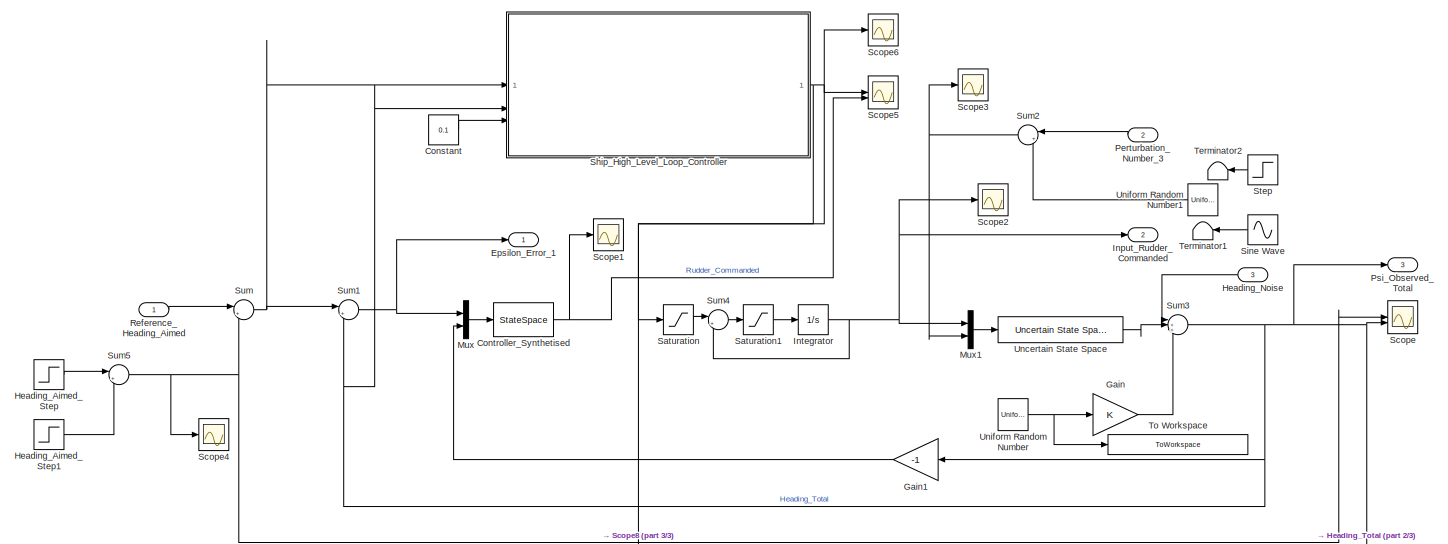
[diagram: root canvas - part 1/3, full width, top band]
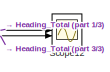
[diagram: root canvas - part 2/3, middle right region]
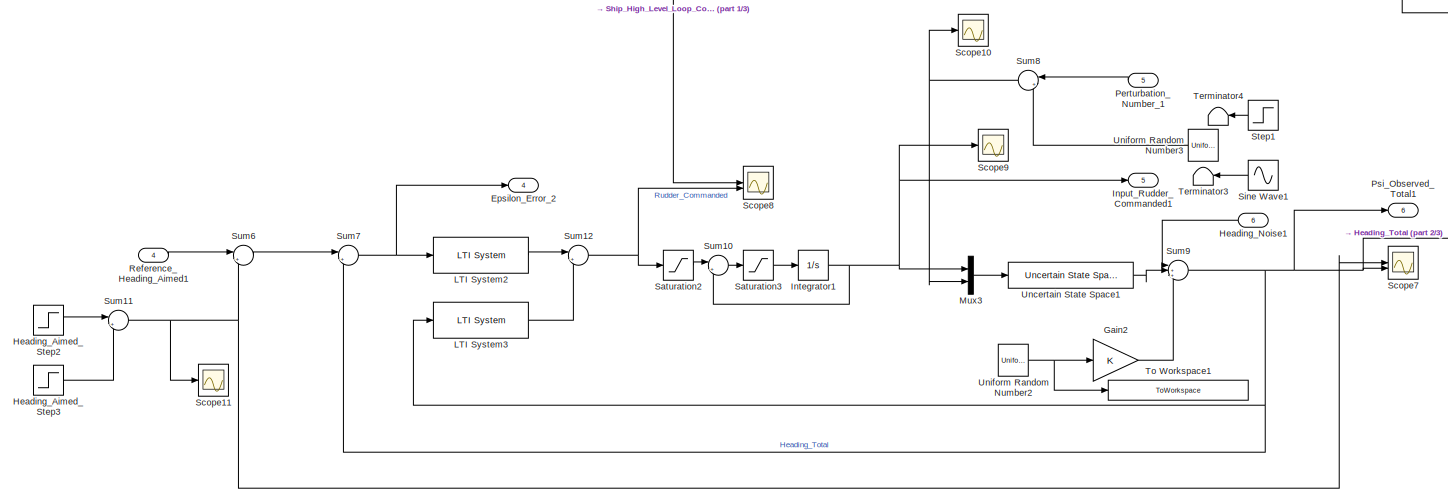
[diagram: root canvas - part 3/3, full width, bottom band]
MODEL slx_6f671dde7a6b
KIND model
CONFIG AbsTol = auto
CONFIG EnableMultiTasking = off
CONFIG FixedStep = auto
CONFIG MaxStep = auto
CONFIG MinStep = auto
CONFIG RelTol = 1e-3
CONFIG SampleTimeConstraint = Unconstrained
CONFIG SolverName = VariableStepAuto
CONFIG StartTime = 0.0
CONFIG StopTime = 150
BLOCK [Constant] Constant
  Value = 0.1
BLOCK [StateSpace] Controller_Synthetised
  A = State_Matrix_Controller_Nominal
  B = Input_Matrix_Controller_Nominal
  C = Measurement_Matrix_Controller_Nominal
  D = Input_Measurement_Matrix_Controller_Nominal
  InitialCondition = 0
BLOCK [Outport] Epsilon_Error_1
BLOCK [Outport] Epsilon_Error_2
  Port = 4
BLOCK [Gain] Gain
  OutDataTypeStr = Inherit: Same as input
  ParamDataTypeStr = Inherit: Same as input
  SaturateOnIntegerOverflow = on
BLOCK [Gain] Gain1
  Gain = -1
  OutDataTypeStr = Inherit: Same as input
  ParamDataTypeStr = Inherit: Same as input
  SaturateOnIntegerOverflow = on
BLOCK [Gain] Gain2
  OutDataTypeStr = Inherit: Same as input
  ParamDataTypeStr = Inherit: Same as input
  SaturateOnIntegerOverflow = on
BLOCK [Step] Heading_Aimed_Step
  After = Step_Heading_Aimed
  SampleTime = 0
  Time = 0
BLOCK [Step] Heading_Aimed_Step1
  After = 50*(pi/180)
  SampleTime = 0
  Time = 20
BLOCK [Step] Heading_Aimed_Step2
  After = Step_Heading_Aimed
  SampleTime = 0
  Time = 0
BLOCK [Step] Heading_Aimed_Step3
  After = 50*(pi/180)
  SampleTime = 0
  Time = 20
BLOCK [Inport] Heading_Noise
  Port = 3
BLOCK [Inport] Heading_Noise1
  Port = 6
BLOCK [Outport] Input_Rudder_Commanded
  Port = 2
BLOCK [Outport] Input_Rudder_Commanded1
  Port = 5
BLOCK [Integrator] Integrator
BLOCK [Integrator] Integrator1
BLOCK [Reference] LTI System2  REF=cstblocks/LTI System
  SourceBlock = cstblocks/LTI System
  SourceType = LTI Block
BLOCK [Reference] LTI System3  REF=cstblocks/LTI System
  SourceBlock = cstblocks/LTI System
  SourceType = LTI Block
BLOCK [Mux] Mux
  DisplayOption = bar
  Inputs = 2
BLOCK [Mux] Mux1
  DisplayOption = bar
  Inputs = 2
BLOCK [Mux] Mux3
  DisplayOption = bar
  Inputs = 2
BLOCK [Inport] Perturbation_Number_1
  Port = 5
BLOCK [Inport] Perturbation_Number_3
  Port = 2
BLOCK [Outport] Psi_Observed_Total
  Port = 3
BLOCK [Outport] Psi_Observed_Total1
  Port = 6
BLOCK [Inport] Reference_Heading_Aimed
BLOCK [Inport] Reference_Heading_Aimed1
  Port = 4
BLOCK [Saturate] Saturation
  LowerLimit = -35*(pi/180)
  UpperLimit = 35*(pi/180)
BLOCK [Saturate] Saturation1
  LowerLimit = -8*(pi/180)
  UpperLimit = 8*(pi/180)
BLOCK [Saturate] Saturation2
  LowerLimit = -35*(pi/180)
  UpperLimit = 35*(pi/180)
BLOCK [Saturate] Saturation3
  LowerLimit = -8*(pi/180)
  UpperLimit = 8*(pi/180)
BLOCK [Scope] Scope
  Floating = off
  NumInputPorts = 2
  ScopeSpecificationString = Simulink.scopes.TimeScopeBlockCfg('CurrentConfiguration', extmgr.ConfigurationSet(extmgr.Configuration('Core','General UI',true),extmgr.Configuration('Core','Source UI',true),extmgr.Configuration('Sources','WiredSimulink',true),extmgr.Configuration('Visuals','Time Domain',true,'SerializedDisplays',{struct('MinYLimReal','-0.20195','MaxYLimReal','1.72277','YLabelReal','','MinYLimMag','0.00000','MaxY...<+1473ch>
BLOCK [Scope] Scope1
  Floating = off
  NumInputPorts = 1
  ScopeSpecificationString = Simulink.scopes.TimeScopeBlockCfg('CurrentConfiguration', extmgr.ConfigurationSet(extmgr.Configuration('Core','General UI',true),extmgr.Configuration('Core','Source UI',true),extmgr.Configuration('Sources','WiredSimulink',true,'DataLoggingVariableName','ScopeData1'),extmgr.Configuration('Visuals','Time Domain',true,'SerializedDisplays',{struct('MinYLimReal','-0.4168','MaxYLimReal','0.47214','YLabe...<+1518ch>
BLOCK [Scope] Scope10
  Floating = off
  NumInputPorts = 1
  ScopeSpecificationString = Simulink.scopes.TimeScopeBlockCfg('CurrentConfiguration', extmgr.ConfigurationSet(extmgr.Configuration('Core','General UI',true),extmgr.Configuration('Core','Source UI',true),extmgr.Configuration('Sources','WiredSimulink',true,'DataLoggingVariableName','ScopeData1'),extmgr.Configuration('Visuals','Time Domain',true,'SerializedDisplays',{struct('MinYLimReal','-0.21816','MaxYLimReal','0.21817','YLab...<+1452ch>
BLOCK [Scope] Scope11
  Floating = off
  NumInputPorts = 1
  ScopeSpecificationString = Simulink.scopes.TimeScopeBlockCfg('CurrentConfiguration', extmgr.ConfigurationSet(extmgr.Configuration('Core','General UI',true),extmgr.Configuration('Core','Source UI',true),extmgr.Configuration('Sources','WiredSimulink',true,'DataLoggingVariableName','ScopeData2'),extmgr.Configuration('Visuals','Time Domain',true,'SerializedDisplays',{struct('MinYLimReal','-0.21817','MaxYLimReal','1.9635','YLabe...<+1487ch>
BLOCK [Scope] Scope12
  Floating = off
  NumInputPorts = 2
  ScopeSpecificationString = Simulink.scopes.TimeScopeBlockCfg('CurrentConfiguration', extmgr.ConfigurationSet(extmgr.Configuration('Core','General UI',true),extmgr.Configuration('Core','Source UI',true),extmgr.Configuration('Sources','WiredSimulink',true,'DataLoggingVariableName','ScopeData1'),extmgr.Configuration('Visuals','Time Domain',true,'SerializedDisplays',{struct('MinYLimReal','-0.20196','MaxYLimReal','1.72277','YLab...<+1477ch>
BLOCK [Scope] Scope2
  Floating = off
  NumInputPorts = 1
  ScopeSpecificationString = Simulink.scopes.TimeScopeBlockCfg('CurrentConfiguration', extmgr.ConfigurationSet(extmgr.Configuration('Core','General UI',true),extmgr.Configuration('Core','Source UI',true),extmgr.Configuration('Sources','WiredSimulink',true,'DataLoggingVariableName','ScopeData1'),extmgr.Configuration('Visuals','Time Domain',true,'SerializedDisplays',{struct('MinYLimReal','-0.19774','MaxYLimReal','0.26481','YLab...<+1535ch>
BLOCK [Scope] Scope3
  Floating = off
  NumInputPorts = 1
  ScopeSpecificationString = Simulink.scopes.TimeScopeBlockCfg('CurrentConfiguration', extmgr.ConfigurationSet(extmgr.Configuration('Core','General UI',true),extmgr.Configuration('Core','Source UI',true),extmgr.Configuration('Sources','WiredSimulink',true,'DataLoggingVariableName','ScopeData1'),extmgr.Configuration('Visuals','Time Domain',true,'SerializedDisplays',{struct('MinYLimReal','-0.21816','MaxYLimReal','0.21817','YLab...<+1452ch>
BLOCK [Scope] Scope4
  Floating = off
  NumInputPorts = 1
  ScopeSpecificationString = Simulink.scopes.TimeScopeBlockCfg('CurrentConfiguration', extmgr.ConfigurationSet(extmgr.Configuration('Core','General UI',true),extmgr.Configuration('Core','Source UI',true),extmgr.Configuration('Sources','WiredSimulink',true,'DataLoggingVariableName','ScopeData1'),extmgr.Configuration('Visuals','Time Domain',true,'SerializedDisplays',{struct('MinYLimReal','-0.21817','MaxYLimReal','1.9635','YLabe...<+1487ch>
BLOCK [Scope] Scope5
  Floating = off
  NumInputPorts = 2
  ScopeSpecificationString = Simulink.scopes.TimeScopeBlockCfg('CurrentConfiguration', extmgr.ConfigurationSet(extmgr.Configuration('Core','General UI',true),extmgr.Configuration('Core','Source UI',true),extmgr.Configuration('Sources','WiredSimulink',true,'DataLoggingVariableName','ScopeData1'),extmgr.Configuration('Visuals','Time Domain',true,'SerializedDisplays',{struct('MinYLimReal','-0.37696','MaxYLimReal','0.38615','YLab...<+1498ch>
BLOCK [Scope] Scope6
  Floating = off
  NumInputPorts = 1
  ScopeSpecificationString = Simulink.scopes.TimeScopeBlockCfg('CurrentConfiguration', extmgr.ConfigurationSet(extmgr.Configuration('Core','General UI',true),extmgr.Configuration('Core','Source UI',true),extmgr.Configuration('Sources','WiredSimulink',true,'DataLoggingVariableName','ScopeData2'),extmgr.Configuration('Visuals','Time Domain',true,'SerializedDisplays',{struct('MinYLimReal','-0.41518','MaxYLimReal','0.47042','YLab...<+1512ch>
BLOCK [Scope] Scope7
  Floating = off
  NumInputPorts = 2
  ScopeSpecificationString = Simulink.scopes.TimeScopeBlockCfg('CurrentConfiguration', extmgr.ConfigurationSet(extmgr.Configuration('Core','General UI',true),extmgr.Configuration('Core','Source UI',true),extmgr.Configuration('Sources','WiredSimulink',true,'DataLoggingVariableName','ScopeData5'),extmgr.Configuration('Visuals','Time Domain',true,'SerializedDisplays',{struct('MinYLimReal','-0.19844','MaxYLimReal','1.68943','YLab...<+1513ch>
BLOCK [Scope] Scope8
  Floating = off
  NumInputPorts = 2
  ScopeSpecificationString = Simulink.scopes.TimeScopeBlockCfg('CurrentConfiguration', extmgr.ConfigurationSet(extmgr.Configuration('Core','General UI',true),extmgr.Configuration('Core','Source UI',true),extmgr.Configuration('Sources','WiredSimulink',true,'DataLoggingVariableName','ScopeData6'),extmgr.Configuration('Visuals','Time Domain',true,'SerializedDisplays',{struct('MinYLimReal','-0.37684','MaxYLimReal','0.3851','YLabe...<+1550ch>
BLOCK [Scope] Scope9
  Floating = off
  NumInputPorts = 1
  ScopeSpecificationString = Simulink.scopes.TimeScopeBlockCfg('CurrentConfiguration', extmgr.ConfigurationSet(extmgr.Configuration('Core','General UI',true),extmgr.Configuration('Core','Source UI',true),extmgr.Configuration('Sources','WiredSimulink',true,'DataLoggingVariableName','ScopeData7'),extmgr.Configuration('Visuals','Time Domain',true,'SerializedDisplays',{struct('MinYLimReal','-0.19774','MaxYLimReal','0.26481','YLab...<+1535ch>
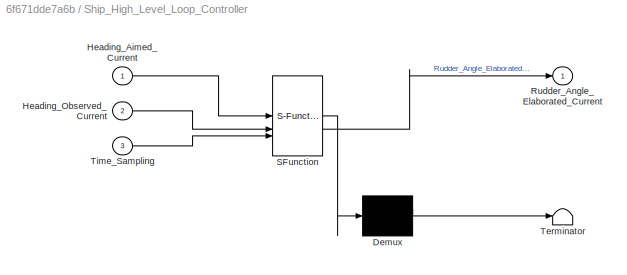
BLOCK [SubSystem] Ship_High_Level_Loop_Controller
  ErrorFcn = Stateflow.Translate.translate
  PermitHierarchicalResolution = ExplicitOnly
  SFBlockType = MATLAB Function
  SystemSampleTime = 0.1
  TreatAsAtomicUnit = on
BLOCK [Demux] Ship_High_Level_Loop_Controller/ Demux 
  Outputs = 1
BLOCK [S-Function] Ship_High_Level_Loop_Controller/ SFunction 
  EnableBusSupport = on
  FunctionName = sf_sfun
  PortCounts = [3 2]
  SFcnIsStateOwnerBlock = off
  SFunctionDeploymentMode = off
  Tag = Stateflow S-Function 13
BLOCK [Terminator] Ship_High_Level_Loop_Controller/ Terminator 
BLOCK [Inport] Ship_High_Level_Loop_Controller/Heading_Aimed_Current
BLOCK [Inport] Ship_High_Level_Loop_Controller/Heading_Observed_Current
  Port = 2
BLOCK [Outport] Ship_High_Level_Loop_Controller/Rudder_Angle_Elaborated_Current
BLOCK [Inport] Ship_High_Level_Loop_Controller/Time_Sampling
  Port = 3
BLOCK [Sin] Sine Wave
  Amplitude = 2*(pi/180)
  Frequency = 0.6
  SampleTime = 0
BLOCK [Sin] Sine Wave1
  Amplitude = 2*(pi/180)
  Frequency = 0.6
  SampleTime = 0
BLOCK [Step] Step
  After = Perturbation_Step
  NameLocation = top
  SampleTime = 0
  Time = 10
BLOCK [Step] Step1
  After = Perturbation_Step
  NameLocation = top
  SampleTime = 0
  Time = 10
BLOCK [Sum] Sum
  Inputs = |++
BLOCK [Sum] Sum1
  Inputs = |+-
BLOCK [Sum] Sum10
  Inputs = |+-
BLOCK [Sum] Sum11
  Inputs = |++
BLOCK [Sum] Sum12
  Inputs = |+-
BLOCK [Sum] Sum2
  Inputs = |++
BLOCK [Sum] Sum3
  Inputs = |+++
BLOCK [Sum] Sum4
  Inputs = |+-
BLOCK [Sum] Sum5
  Inputs = |++
BLOCK [Sum] Sum6
  Inputs = |++
BLOCK [Sum] Sum7
  Inputs = |+-
BLOCK [Sum] Sum8
  Inputs = |++
BLOCK [Sum] Sum9
  Inputs = |+++
BLOCK [Terminator] Terminator1
BLOCK [Terminator] Terminator2
BLOCK [Terminator] Terminator3
BLOCK [Terminator] Terminator4
BLOCK [ToWorkspace] To Workspace
  FixptAsFi = on
  MaxDataPoints = inf
  SampleTime = -1
  SaveFormat = Timeseries
  VariableName = Noise_Heading_Generated
BLOCK [ToWorkspace] To Workspace1
  FixptAsFi = on
  MaxDataPoints = inf
  SampleTime = -1
  SaveFormat = Timeseries
  VariableName = Noise_Heading_Generated1
BLOCK [Reference] Uncertain State Space  REF=RCTblocks/Uncertain State Space
  SourceBlock = RCTblocks/Uncertain State Space
  SourceType = Uncertain State Space Block
  Tag = USS
BLOCK [Reference] Uncertain State Space1  REF=RCTblocks/Uncertain State Space
  SourceBlock = RCTblocks/Uncertain State Space
  SourceType = Uncertain State Space Block
  Tag = USS
BLOCK [UniformRandomNumber] Uniform Random Number
  Maximum = 0.5*(pi/180)
  Minimum = -0.5*(pi/180)
  SampleTime = 1e-2
BLOCK [UniformRandomNumber] Uniform Random Number1
  Maximum = 15*(pi/180)
  Minimum = -15*(pi/180)
  SampleTime = 1e-2
BLOCK [UniformRandomNumber] Uniform Random Number2
  Maximum = 0.5*(pi/180)
  Minimum = -0.5*(pi/180)
  SampleTime = 1e-2
BLOCK [UniformRandomNumber] Uniform Random Number3
  Maximum = 15*(pi/180)
  Minimum = -15*(pi/180)
  SampleTime = 1e-2
LINE Constant:1 -> Ship_High_Level_Loop_Controller:3
NET Controller_Synthetised:1 -> Scope1:1, Scope5:2
LINE Gain1:1 -> Mux:2
LINE Gain2:1 -> Sum9:3
LINE Gain:1 -> Sum3:3
LINE Heading_Aimed_Step1:1 -> Sum5:2
LINE Heading_Aimed_Step2:1 -> Sum11:1
LINE Heading_Aimed_Step3:1 -> Sum11:2
LINE Heading_Aimed_Step:1 -> Sum5:1
LINE Heading_Noise1:1 -> Sum9:1
LINE Heading_Noise:1 -> Sum3:1
NET Integrator1:1 -> Input_Rudder_Commanded1:1, Mux3:1, Scope9:1, Sum10:2
NET Integrator:1 -> Input_Rudder_Commanded:1, Mux1:1, Scope2:1, Sum4:2
LINE LTI System2:1 -> Sum12:1
LINE LTI System3:1 -> Sum12:2
LINE Mux1:1 -> Uncertain State Space:1
LINE Mux3:1 -> Uncertain State Space1:1
LINE Mux:1 -> Controller_Synthetised:1
LINE Perturbation_Number_1:1 -> Sum8:1
LINE Perturbation_Number_3:1 -> Sum2:1
LINE Reference_Heading_Aimed1:1 -> Sum6:1
LINE Reference_Heading_Aimed:1 -> Sum:1
LINE Saturation1:1 -> Integrator:1
LINE Saturation2:1 -> Sum10:1
LINE Saturation3:1 -> Integrator1:1
LINE Saturation:1 -> Sum4:1
NET Ship_High_Level_Loop_Controller:1 -> Saturation:1, Scope5:1, Scope6:1, Scope8:1
LINE Sine Wave1:1 -> Terminator3:1
LINE Sine Wave:1 -> Terminator1:1
LINE Step1:1 -> Terminator4:1
LINE Step:1 -> Terminator2:1
LINE Sum10:1 -> Saturation3:1
NET Sum11:1 -> Scope11:1, Scope7:1, Sum6:2
NET Sum12:1 -> Saturation2:1, Scope8:2
NET Sum1:1 -> Epsilon_Error_1:1, Mux:1
NET Sum2:1 -> Mux1:2, Scope3:1
NET Sum3:1 -> Gain1:1, Psi_Observed_Total:1, Scope12:1, Scope:2, Ship_High_Level_Loop_Controller:2, Sum1:2
LINE Sum4:1 -> Saturation1:1
NET Sum5:1 -> Scope4:1, Scope:1, Sum:2
LINE Sum6:1 -> Sum7:1
NET Sum7:1 -> Epsilon_Error_2:1, LTI System2:1
NET Sum8:1 -> Mux3:2, Scope10:1
NET Sum9:1 -> LTI System3:1, Psi_Observed_Total1:1, Scope12:2, Scope7:2, Sum7:2
NET Sum:1 -> Ship_High_Level_Loop_Controller:1, Sum1:1
LINE Uncertain State Space1:1 -> Sum9:2
LINE Uncertain State Space:1 -> Sum3:2
LINE Uniform Random Number1:1 -> Sum2:2
NET Uniform Random Number2:1 -> Gain2:1, To Workspace1:1
LINE Uniform Random Number3:1 -> Sum8:2
NET Uniform Random Number:1 -> Gain:1, To Workspace:1
note: NET lines group one-source signal fan-out (src -> all destinations, sorted); 1:1 wires keep LINE
CHART Ship_High_Level_Loop_Controller states=1 transitions=1
  STATE_LABEL 'eML_blk_kernel()'
  STATE_LABEL 'SCRIPT:\nfunction Rudder_Angle_Elaborated_Current = Synthetized_Controller_H_Infinity(Heading_Aimed_Current,...\n                                                                             Heading_Observed_Current,...\n                                                                             Time_Sampling)\n\n\n% This controller is based on the stochastic optimization done to find\n% optimal paramete...<+3608ch>'
CHART  states=0 transitions=0
